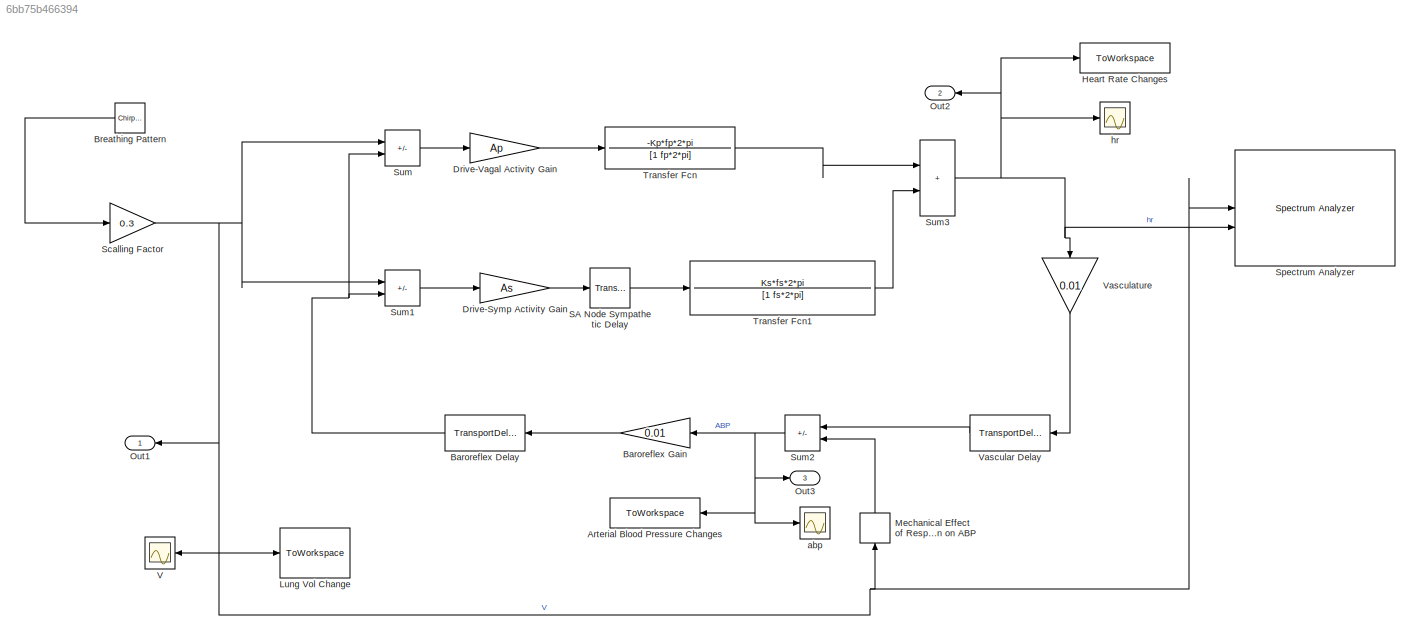
MODEL slx_6bb75b466394
KIND model
CONFIG AbsTol = auto
CONFIG EnableMultiTasking = off
CONFIG FixedStep = 0.1
CONFIG MaxStep = auto
CONFIG MinStep = auto
CONFIG RelTol = 1e-3
CONFIG SampleTimeConstraint = Unconstrained
CONFIG SolverName = ode5
CONFIG StartTime = 0.0
CONFIG StopTime = 300
BLOCK [ToWorkspace] Arterial Blood Pressure Changes
  FixptAsFi = on
  MaxDataPoints = inf
  SampleTime = -1
  VariableName = abp
BLOCK [TransportDelay] Baroreflex Delay
  DelayTime = 0.3
BLOCK [Gain] Baroreflex Gain
  Gain = 0.01
BLOCK [Reference] Breathing Pattern  REF=simulink/Sources/Chirp Signal
  SourceBlock = simulink/Sources/Chirp Signal
  SourceType = chirp
BLOCK [Gain] Drive-Symp Activity Gain
  Gain = As
BLOCK [Gain] Drive-Vagal Activity Gain
  Gain = Ap
BLOCK [ToWorkspace] Heart Rate Changes
  FixptAsFi = on
  MaxDataPoints = inf
  NameLocation = right
  SampleTime = -1
  VariableName = hr
BLOCK [ToWorkspace] Lung Vol Change
  FixptAsFi = on
  MaxDataPoints = inf
  SampleTime = -1
  VariableName = V
BLOCK [Derivative] Mechanical Effect of Respiration on ABP
  NameLocation = right
BLOCK [Outport] Out1
  NameLocation = top
BLOCK [Outport] Out2
  NameLocation = top
  Port = 2
BLOCK [Outport] Out3
  Port = 3
BLOCK [TransportDelay] SA Node Sympathetic Delay
  DelayTime = 1.7
BLOCK [Gain] Scalling Factor
  Gain = 0.3
BLOCK [Reference] Spectrum Analyzer  REF=simulink_extras/Additional
Sinks/Spectrum
Analyzer
  SourceBlock = simulink_extras/Additional\nSinks/Spectrum\nAnalyzer
  SourceType = Spectrum Analyzer
BLOCK [Sum] Sum
  IconShape = rectangular
  Inputs = |-+
BLOCK [Sum] Sum1
  IconShape = rectangular
  Inputs = |--
BLOCK [Sum] Sum2
  IconShape = rectangular
  Inputs = |+-
  NameLocation = top
BLOCK [Sum] Sum3
  IconShape = rectangular
  Inputs = |++
BLOCK [TransferFcn] Transfer Fcn
  Denominator = [1 fp*2*pi]
  Numerator = -Kp*fp*2*pi
BLOCK [TransferFcn] Transfer Fcn1
  Denominator = [1 fs*2*pi]
  Numerator = Ks*fs*2*pi
BLOCK [Scope] V
  Floating = off
  NumInputPorts = 1
  ScopeSpecificationString = Simulink.scopes.TimeScopeBlockCfg('CurrentConfiguration', extmgr.ConfigurationSet(extmgr.Configuration('Core','General UI',true),extmgr.Configuration('Core','Source UI',true),extmgr.Configuration('Sources','WiredSimulink',true,'DataLoggingVariableName','ScopeData1'),extmgr.Configuration('Visuals','Time Domain',true,'SerializedDisplays',{struct('MinYLimReal','-0.375','MaxYLimReal','0.375','YLabelRe...<+1465ch>
BLOCK [TransportDelay] Vascular Delay
  DelayTime = 0.42
BLOCK [Gain] Vasculature
  Gain = 0.01
  NameLocation = right
BLOCK [Scope] abp
  Floating = off
  NumInputPorts = 1
  ScopeSpecificationString = Simulink.scopes.TimeScopeBlockCfg('CurrentConfiguration', extmgr.ConfigurationSet(extmgr.Configuration('Core','General UI',true),extmgr.Configuration('Core','Source UI',true),extmgr.Configuration('Sources','WiredSimulink',true,'DataLoggingVariableName','ScopeData2'),extmgr.Configuration('Visuals','Time Domain',true,'SerializedDisplays',{struct('MinYLimReal','-1.16888','MaxYLimReal','1.17315','YLab...<+1451ch>
BLOCK [Scope] hr
  Floating = off
  NumInputPorts = 1
  ScopeSpecificationString = Simulink.scopes.TimeScopeBlockCfg('CurrentConfiguration', extmgr.ConfigurationSet(extmgr.Configuration('Core','General UI',true),extmgr.Configuration('Core','Source UI',true),extmgr.Configuration('Sources','WiredSimulink',true),extmgr.Configuration('Visuals','Time Domain',true,'SerializedDisplays',{struct('MinYLimReal','-5.88552','MaxYLimReal','5.44145','YLabelReal','','MinYLimMag','0.00000','MaxY...<+1444ch>
NET Baroreflex Delay:1 -> Sum1:2, Sum:2
LINE Baroreflex Gain:1 -> Baroreflex Delay:1
LINE Breathing Pattern:1 -> Scalling Factor:1
LINE Drive-Symp Activity Gain:1 -> SA Node Sympathetic Delay:1
LINE Drive-Vagal Activity Gain:1 -> Transfer Fcn:1
LINE Mechanical Effect of Respiration on ABP:1 -> Sum2:2
LINE SA Node Sympathetic Delay:1 -> Transfer Fcn1:1
NET Scalling Factor:1 -> Lung Vol Change:1, Mechanical Effect of Respiration on ABP:1, Out1:1, Spectrum Analyzer:1, Sum1:1, Sum:1, V:1
LINE Sum1:1 -> Drive-Symp Activity Gain:1
NET Sum2:1 -> Arterial Blood Pressure Changes:1, Baroreflex Gain:1, Out3:1, abp:1
NET Sum3:1 -> Heart Rate Changes:1, Out2:1, Spectrum Analyzer:2, Vasculature:1, hr:1
LINE Sum:1 -> Drive-Vagal Activity Gain:1
LINE Transfer Fcn1:1 -> Sum3:2
LINE Transfer Fcn:1 -> Sum3:1
LINE Vascular Delay:1 -> Sum2:1
LINE Vasculature:1 -> Vascular Delay:1
note: NET lines group one-source signal fan-out (src -> all destinations, sorted); 1:1 wires keep LINE
